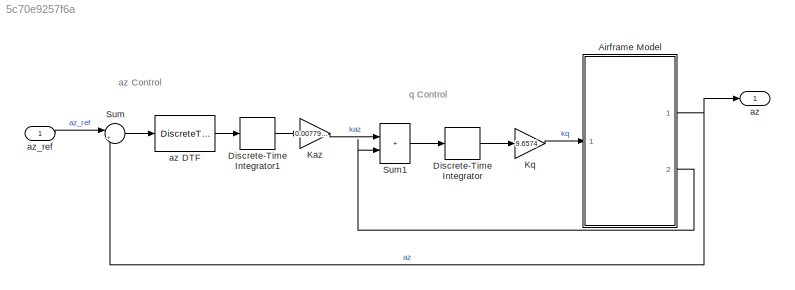
MODEL slx_5c70e9257f6a
KIND model
CONFIG AbsTol = 1e-6
CONFIG EnableMultiTasking = off
CONFIG FixedStep = auto
CONFIG MaxStep = auto
CONFIG MinStep = auto
CONFIG RelTol = 1e-3
CONFIG SampleTimeConstraint = Unconstrained
CONFIG Solver = ode23t
CONFIG SolverName = ode23t
CONFIG StartTime = 0.0
CONFIG StopTime = 5
WORKSPACE source: MATLAB code (in-file)
WORKSPACE code: scd_aero_guid_dat
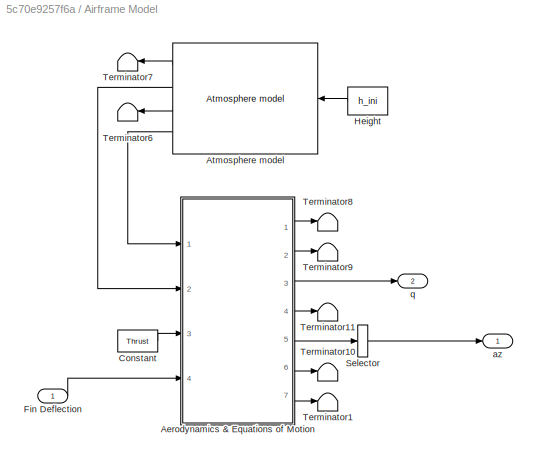
BLOCK [SubSystem] Airframe Model
  Ports = [1, 2]
  RTWMemSecDataConstants = Default
  RTWMemSecDataInternal = Default
  RTWMemSecDataParameters = Default
  RTWMemSecFuncExecute = Default
  RTWMemSecFuncInitTerm = Default
  RequestExecContextInheritance = off
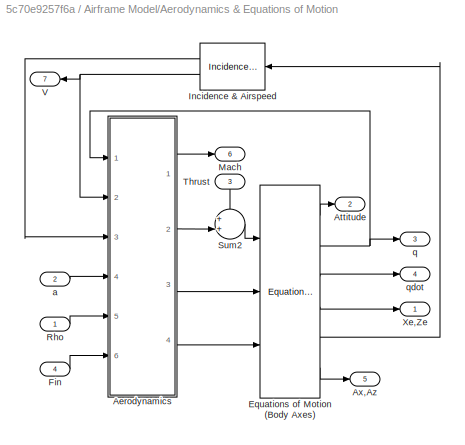
BLOCK [SubSystem] Airframe Model/Aerodynamics & Equations of Motion
  Ports = [4, 7]
  RTWMemSecDataConstants = Default
  RTWMemSecDataInternal = Default
  RTWMemSecDataParameters = Default
  RTWMemSecFuncExecute = Default
  RTWMemSecFuncInitTerm = Default
  RequestExecContextInheritance = off
BLOCK [Reference] Airframe Model/Aerodynamics & Equations of Motion/ Equations of Motion (Body Axes)  REF=aerospace/3DoF  (lib defined in mdl_cf564d925549, slx_1354fe9238a2, +3 more)
Equations
of
Motion / Equations of Motion
(Body Axes)
  Ports = [3, 6]
  SourceBlock = aerospace/3DoF\nEquations\nof\nMotion / Equations of Motion\n(Body Axes)
  SourceProductBaseCode = SL
  SourceType = 3 DOF equations of motion
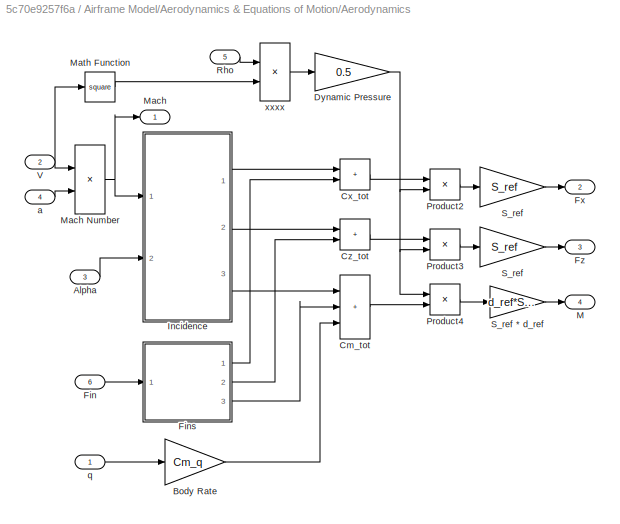
BLOCK [SubSystem] Airframe Model/Aerodynamics & Equations of Motion/Aerodynamics
  Ports = [6, 4]
  RTWMemSecDataConstants = Default
  RTWMemSecDataInternal = Default
  RTWMemSecDataParameters = Default
  RTWMemSecFuncExecute = Default
  RTWMemSecFuncInitTerm = Default
  RequestExecContextInheritance = off
BLOCK [Outport] Airframe Model/Aerodynamics & Equations of Motion/Aerodynamics/ M
  InitialOutput = 0
  Port = 4
BLOCK [Outport] Airframe Model/Aerodynamics & Equations of Motion/Aerodynamics/ Mach
  InitialOutput = 0
  NameLocation = top
BLOCK [Inport] Airframe Model/Aerodynamics & Equations of Motion/Aerodynamics/Alpha
  Port = 3
BLOCK [Gain] Airframe Model/Aerodynamics & Equations of Motion/Aerodynamics/Body Rate
  Gain = Cm_q
  OutDataTypeStr = Inherit: Same as input
  ParamDataTypeStr = Inherit: Same as input
  SaturateOnIntegerOverflow = on
BLOCK [Sum] Airframe Model/Aerodynamics & Equations of Motion/Aerodynamics/Cm_tot
  IconShape = rectangular
  InputSameDT = on
  Inputs = +++
  OutDataTypeStr = Inherit: Same as first input
  Ports = [3, 1]
  SaturateOnIntegerOverflow = on
BLOCK [Sum] Airframe Model/Aerodynamics & Equations of Motion/Aerodynamics/Cx_tot
  IconShape = rectangular
  InputSameDT = on
  OutDataTypeStr = Inherit: Same as first input
  Ports = [2, 1]
  SaturateOnIntegerOverflow = on
BLOCK [Sum] Airframe Model/Aerodynamics & Equations of Motion/Aerodynamics/Cz_tot
  IconShape = rectangular
  InputSameDT = on
  OutDataTypeStr = Inherit: Same as first input
  Ports = [2, 1]
  SaturateOnIntegerOverflow = on
BLOCK [Gain] Airframe Model/Aerodynamics & Equations of Motion/Aerodynamics/Dynamic Pressure
  Gain = 0.5
  OutDataTypeStr = Inherit: Same as input
  ParamDataTypeStr = Inherit: Same as input
  SaturateOnIntegerOverflow = on
BLOCK [Inport] Airframe Model/Aerodynamics & Equations of Motion/Aerodynamics/Fin
  Port = 6
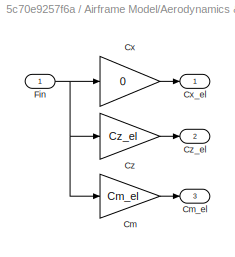
BLOCK [SubSystem] Airframe Model/Aerodynamics & Equations of Motion/Aerodynamics/Fins
  Ports = [1, 3]
  RTWMemSecDataConstants = Default
  RTWMemSecDataInternal = Default
  RTWMemSecDataParameters = Default
  RTWMemSecFuncExecute = Default
  RTWMemSecFuncInitTerm = Default
  RequestExecContextInheritance = off
BLOCK [Gain] Airframe Model/Aerodynamics & Equations of Motion/Aerodynamics/Fins/Cm
  Gain = Cm_el
  OutDataTypeStr = Inherit: Same as input
  ParamDataTypeStr = Inherit: Same as input
  SaturateOnIntegerOverflow = on
BLOCK [Outport] Airframe Model/Aerodynamics & Equations of Motion/Aerodynamics/Fins/Cm_el
  InitialOutput = 0
  Port = 3
BLOCK [Gain] Airframe Model/Aerodynamics & Equations of Motion/Aerodynamics/Fins/Cx
  Gain = 0
  OutDataTypeStr = Inherit: Same as input
  ParamDataTypeStr = Inherit: Same as input
  SaturateOnIntegerOverflow = on
BLOCK [Outport] Airframe Model/Aerodynamics & Equations of Motion/Aerodynamics/Fins/Cx_el
  InitialOutput = 0
BLOCK [Gain] Airframe Model/Aerodynamics & Equations of Motion/Aerodynamics/Fins/Cz
  Gain = Cz_el
  OutDataTypeStr = Inherit: Same as input
  ParamDataTypeStr = Inherit: Same as input
  SaturateOnIntegerOverflow = on
BLOCK [Outport] Airframe Model/Aerodynamics & Equations of Motion/Aerodynamics/Fins/Cz_el
  InitialOutput = 0
  Port = 2
BLOCK [Inport] Airframe Model/Aerodynamics & Equations of Motion/Aerodynamics/Fins/Fin
BLOCK [Outport] Airframe Model/Aerodynamics & Equations of Motion/Aerodynamics/Fx
  InitialOutput = [0]
  Port = 2
BLOCK [Outport] Airframe Model/Aerodynamics & Equations of Motion/Aerodynamics/Fz
  InitialOutput = 0
  Port = 3
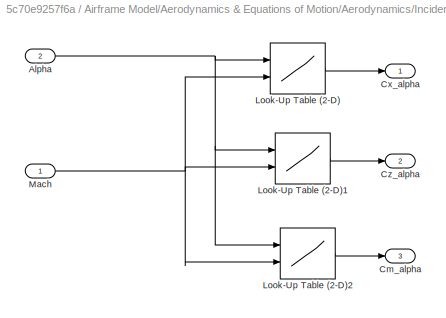
BLOCK [SubSystem] Airframe Model/Aerodynamics & Equations of Motion/Aerodynamics/Incidence
  Ports = [2, 3]
  RTWMemSecDataConstants = Default
  RTWMemSecDataInternal = Default
  RTWMemSecDataParameters = Default
  RTWMemSecFuncExecute = Default
  RTWMemSecFuncInitTerm = Default
  RequestExecContextInheritance = off
BLOCK [Inport] Airframe Model/Aerodynamics & Equations of Motion/Aerodynamics/Incidence/Alpha
  Port = 2
BLOCK [Outport] Airframe Model/Aerodynamics & Equations of Motion/Aerodynamics/Incidence/Cm_alpha
  InitialOutput = 0
  Port = 3
BLOCK [Outport] Airframe Model/Aerodynamics & Equations of Motion/Aerodynamics/Incidence/Cx_alpha
  InitialOutput = 0
BLOCK [Outport] Airframe Model/Aerodynamics & Equations of Motion/Aerodynamics/Incidence/Cz_alpha
  InitialOutput = 0
  Port = 2
BLOCK [Lookup2D] Airframe Model/Aerodynamics & Equations of Motion/Aerodynamics/Incidence/Look-Up Table (2-D)
  ColumnIndex = Mach_vec
  InputSameDT = off
  RowIndex = alpha_vec
  Table = Cx_alpha
BLOCK [Lookup2D] Airframe Model/Aerodynamics & Equations of Motion/Aerodynamics/Incidence/Look-Up Table (2-D)1
  ColumnIndex = Mach_vec
  InputSameDT = off
  RowIndex = alpha_vec
  Table = Cz_alpha
BLOCK [Lookup2D] Airframe Model/Aerodynamics & Equations of Motion/Aerodynamics/Incidence/Look-Up Table (2-D)2
  ColumnIndex = Mach_vec
  InputSameDT = off
  RowIndex = alpha_vec
  Table = Cm_alpha
BLOCK [Inport] Airframe Model/Aerodynamics & Equations of Motion/Aerodynamics/Incidence/Mach
BLOCK [Product] Airframe Model/Aerodynamics & Equations of Motion/Aerodynamics/Mach Number
  InputSameDT = on
  Inputs = */
  OutDataTypeStr = Inherit: Same as first input
  Ports = [2, 1]
  SaturateOnIntegerOverflow = on
BLOCK [Math] Airframe Model/Aerodynamics & Equations of Motion/Aerodynamics/Math Function
  Operator = square
  Ports = [1, 1]
  SignedPower = on
BLOCK [Product] Airframe Model/Aerodynamics & Equations of Motion/Aerodynamics/Product2
  InputSameDT = on
  OutDataTypeStr = Inherit: Same as first input
  Ports = [2, 1]
  SaturateOnIntegerOverflow = on
BLOCK [Product] Airframe Model/Aerodynamics & Equations of Motion/Aerodynamics/Product3
  InputSameDT = on
  OutDataTypeStr = Inherit: Same as first input
  Ports = [2, 1]
  SaturateOnIntegerOverflow = on
BLOCK [Product] Airframe Model/Aerodynamics & Equations of Motion/Aerodynamics/Product4
  InputSameDT = on
  OutDataTypeStr = Inherit: Same as first input
  Ports = [2, 1]
  SaturateOnIntegerOverflow = on
BLOCK [Inport] Airframe Model/Aerodynamics & Equations of Motion/Aerodynamics/Rho
  NameLocation = top
  Port = 5
BLOCK [Gain] Airframe Model/Aerodynamics & Equations of Motion/Aerodynamics/S_ref
  Gain = S_ref
  OutDataTypeStr = Inherit: Same as input
  ParamDataTypeStr = Inherit: Same as input
  SaturateOnIntegerOverflow = on
BLOCK [Gain] Airframe Model/Aerodynamics & Equations of Motion/Aerodynamics/S_ref 
  Gain = S_ref
  OutDataTypeStr = Inherit: Same as input
  ParamDataTypeStr = Inherit: Same as input
  SaturateOnIntegerOverflow = on
BLOCK [Gain] Airframe Model/Aerodynamics & Equations of Motion/Aerodynamics/S_ref * d_ref
  Gain = d_ref*S_ref
  OutDataTypeStr = Inherit: Same as input
  ParamDataTypeStr = Inherit: Same as input
  SaturateOnIntegerOverflow = on
BLOCK [Inport] Airframe Model/Aerodynamics & Equations of Motion/Aerodynamics/V
  Port = 2
BLOCK [Inport] Airframe Model/Aerodynamics & Equations of Motion/Aerodynamics/a
  Port = 4
BLOCK [Inport] Airframe Model/Aerodynamics & Equations of Motion/Aerodynamics/q
BLOCK [Product] Airframe Model/Aerodynamics & Equations of Motion/Aerodynamics/xxxx
  InputSameDT = on
  OutDataTypeStr = Inherit: Same as first input
  Ports = [2, 1]
  SaturateOnIntegerOverflow = on
BLOCK [Outport] Airframe Model/Aerodynamics & Equations of Motion/Attitude
  InitialOutput = 0
  Port = 2
BLOCK [Outport] Airframe Model/Aerodynamics & Equations of Motion/Ax,Az
  InitialOutput = 0
  Port = 5
BLOCK [Inport] Airframe Model/Aerodynamics & Equations of Motion/Fin
  Port = 4
BLOCK [Reference] Airframe Model/Aerodynamics & Equations of Motion/Incidence & Airspeed  REF=aerospace/3DoF  (lib defined in mdl_cf564d925549, slx_1354fe9238a2, +3 more)
Equations
of
Motion /Incidence 
& Airspeed
  NameLocation = top
  Ports = [1, 2]
  SourceBlock = aerospace/3DoF\nEquations\nof\nMotion /Incidence \n& Airspeed
  SourceProductBaseCode = SL
  SourceType = Incidence and Airspeed
BLOCK [Outport] Airframe Model/Aerodynamics & Equations of Motion/Mach
  InitialOutput = 0
  NameLocation = top
  Port = 6
BLOCK [Inport] Airframe Model/Aerodynamics & Equations of Motion/Rho
BLOCK [Sum] Airframe Model/Aerodynamics & Equations of Motion/Sum2
  InputSameDT = on
  Inputs = ++|
  OutDataTypeStr = Inherit: Same as first input
  Ports = [2, 1]
  SaturateOnIntegerOverflow = on
BLOCK [Inport] Airframe Model/Aerodynamics & Equations of Motion/Thrust
  NameLocation = left
  Port = 3
BLOCK [Outport] Airframe Model/Aerodynamics & Equations of Motion/V
  InitialOutput = 0
  Port = 7
BLOCK [Outport] Airframe Model/Aerodynamics & Equations of Motion/Xe,Ze
  InitialOutput = 0
BLOCK [Inport] Airframe Model/Aerodynamics & Equations of Motion/a
  Port = 2
BLOCK [Outport] Airframe Model/Aerodynamics & Equations of Motion/q
  InitialOutput = 0
  Port = 3
BLOCK [Outport] Airframe Model/Aerodynamics & Equations of Motion/qdot
  InitialOutput = 0
  Port = 4
BLOCK [Reference] Airframe Model/Atmosphere model  REF=aerospace/Atmosphere/Atmosphere  (lib defined in mdl_cf564d925549, slx_1354fe9238a2, +3 more)
model
  Ports = [1, 4]
  SourceBlock = aerospace/Atmosphere/Atmosphere\nmodel
  SourceProductBaseCode = SL
  SourceType = Atmosphere Model
BLOCK [Constant] Airframe Model/Constant
  Value = Thrust
BLOCK [Inport] Airframe Model/Fin Deflection
BLOCK [Constant] Airframe Model/Height
  Value = h_ini
BLOCK [Selector] Airframe Model/Selector
  IndexOptions = Index vector (dialog)
  Indices = [2]
  InputPortWidth = 2
  OutputSizes = 1
  Ports = [1, 1]
BLOCK [Terminator] Airframe Model/Terminator1
BLOCK [Terminator] Airframe Model/Terminator10
BLOCK [Terminator] Airframe Model/Terminator11
BLOCK [Terminator] Airframe Model/Terminator6
BLOCK [Terminator] Airframe Model/Terminator7
BLOCK [Terminator] Airframe Model/Terminator8
BLOCK [Terminator] Airframe Model/Terminator9
BLOCK [Outport] Airframe Model/az
  InitialOutput = 0
BLOCK [Outport] Airframe Model/q
  InitialOutput = 0
  Port = 2
BLOCK [DiscreteIntegrator] Discrete-Time Integrator
  ICPrevOutput = DiscIntNeverNeededParam
  ICPrevScaledInput = DiscIntNeverNeededParam
  Ports = [1, 1]
  SampleTime = 0.01
BLOCK [DiscreteIntegrator] Discrete-Time Integrator1
  ICPrevOutput = DiscIntNeverNeededParam
  ICPrevScaledInput = DiscIntNeverNeededParam
  Ports = [1, 1]
  SampleTime = 0.01
BLOCK [Gain] Kaz
  Gain = 0.0077918
BLOCK [Gain] Kq
  Gain = 9.6574
BLOCK [Sum] Sum
  Inputs = |+-
  Ports = [2, 1]
  SaturateOnIntegerOverflow = on
BLOCK [Sum] Sum1
  IconShape = rectangular
  Ports = [2, 1]
  SaturateOnIntegerOverflow = on
BLOCK [Outport] az
BLOCK [DiscreteTransferFcn] az DTF
  Denominator = [1 -0.88893]
  InputPortMap = u0
  Numerator = [100.109745 -99.109745]
  Ports = [1, 1]
  SampleTime = 0.01
BLOCK [Inport] az_ref
ANNOTATION (root): az Control
ANNOTATION (root): q Control
LINE Airframe Model/Aerodynamics & Equations of Motion/ Equations of Motion (Body Axes):1 -> Airframe Model/Aerodynamics & Equations of Motion/Attitude:1
NET Airframe Model/Aerodynamics & Equations of Motion/ Equations of Motion (Body Axes):2 -> Airframe Model/Aerodynamics & Equations of Motion/Aerodynamics:1, Airframe Model/Aerodynamics & Equations of Motion/q:1
LINE Airframe Model/Aerodynamics & Equations of Motion/ Equations of Motion (Body Axes):3 -> Airframe Model/Aerodynamics & Equations of Motion/qdot:1
LINE Airframe Model/Aerodynamics & Equations of Motion/ Equations of Motion (Body Axes):4 -> Airframe Model/Aerodynamics & Equations of Motion/Xe,Ze:1
LINE Airframe Model/Aerodynamics & Equations of Motion/ Equations of Motion (Body Axes):5 -> Airframe Model/Aerodynamics & Equations of Motion/Incidence & Airspeed:1
LINE Airframe Model/Aerodynamics & Equations of Motion/ Equations of Motion (Body Axes):6 -> Airframe Model/Aerodynamics & Equations of Motion/Ax,Az:1
LINE Airframe Model/Aerodynamics & Equations of Motion/Aerodynamics/Alpha:1 -> Airframe Model/Aerodynamics & Equations of Motion/Aerodynamics/Incidence:2
LINE Airframe Model/Aerodynamics & Equations of Motion/Aerodynamics/Body Rate:1 -> Airframe Model/Aerodynamics & Equations of Motion/Aerodynamics/Cm_tot:3
LINE Airframe Model/Aerodynamics & Equations of Motion/Aerodynamics/Cm_tot:1 -> Airframe Model/Aerodynamics & Equations of Motion/Aerodynamics/Product4:2
LINE Airframe Model/Aerodynamics & Equations of Motion/Aerodynamics/Cx_tot:1 -> Airframe Model/Aerodynamics & Equations of Motion/Aerodynamics/Product2:1
LINE Airframe Model/Aerodynamics & Equations of Motion/Aerodynamics/Cz_tot:1 -> Airframe Model/Aerodynamics & Equations of Motion/Aerodynamics/Product3:1
NET Airframe Model/Aerodynamics & Equations of Motion/Aerodynamics/Dynamic Pressure:1 -> Airframe Model/Aerodynamics & Equations of Motion/Aerodynamics/Product2:2, Airframe Model/Aerodynamics & Equations of Motion/Aerodynamics/Product3:2, Airframe Model/Aerodynamics & Equations of Motion/Aerodynamics/Product4:1
LINE Airframe Model/Aerodynamics & Equations of Motion/Aerodynamics/Fin:1 -> Airframe Model/Aerodynamics & Equations of Motion/Aerodynamics/Fins:1
LINE Airframe Model/Aerodynamics & Equations of Motion/Aerodynamics/Fins/Cm:1 -> Airframe Model/Aerodynamics & Equations of Motion/Aerodynamics/Fins/Cm_el:1
LINE Airframe Model/Aerodynamics & Equations of Motion/Aerodynamics/Fins/Cx:1 -> Airframe Model/Aerodynamics & Equations of Motion/Aerodynamics/Fins/Cx_el:1
LINE Airframe Model/Aerodynamics & Equations of Motion/Aerodynamics/Fins/Cz:1 -> Airframe Model/Aerodynamics & Equations of Motion/Aerodynamics/Fins/Cz_el:1
NET Airframe Model/Aerodynamics & Equations of Motion/Aerodynamics/Fins/Fin:1 -> Airframe Model/Aerodynamics & Equations of Motion/Aerodynamics/Fins/Cm:1, Airframe Model/Aerodynamics & Equations of Motion/Aerodynamics/Fins/Cx:1, Airframe Model/Aerodynamics & Equations of Motion/Aerodynamics/Fins/Cz:1
LINE Airframe Model/Aerodynamics & Equations of Motion/Aerodynamics/Fins:1 -> Airframe Model/Aerodynamics & Equations of Motion/Aerodynamics/Cx_tot:2
LINE Airframe Model/Aerodynamics & Equations of Motion/Aerodynamics/Fins:2 -> Airframe Model/Aerodynamics & Equations of Motion/Aerodynamics/Cz_tot:2
LINE Airframe Model/Aerodynamics & Equations of Motion/Aerodynamics/Fins:3 -> Airframe Model/Aerodynamics & Equations of Motion/Aerodynamics/Cm_tot:2
NET Airframe Model/Aerodynamics & Equations of Motion/Aerodynamics/Incidence/Alpha:1 -> Airframe Model/Aerodynamics & Equations of Motion/Aerodynamics/Incidence/Look-Up Table (2-D)1:1, Airframe Model/Aerodynamics & Equations of Motion/Aerodynamics/Incidence/Look-Up Table (2-D)2:1, Airframe Model/Aerodynamics & Equations of Motion/Aerodynamics/Incidence/Look-Up Table (2-D):1
LINE Airframe Model/Aerodynamics & Equations of Motion/Aerodynamics/Incidence/Look-Up Table (2-D)1:1 -> Airframe Model/Aerodynamics & Equations of Motion/Aerodynamics/Incidence/Cz_alpha:1
LINE Airframe Model/Aerodynamics & Equations of Motion/Aerodynamics/Incidence/Look-Up Table (2-D)2:1 -> Airframe Model/Aerodynamics & Equations of Motion/Aerodynamics/Incidence/Cm_alpha:1
LINE Airframe Model/Aerodynamics & Equations of Motion/Aerodynamics/Incidence/Look-Up Table (2-D):1 -> Airframe Model/Aerodynamics & Equations of Motion/Aerodynamics/Incidence/Cx_alpha:1
NET Airframe Model/Aerodynamics & Equations of Motion/Aerodynamics/Incidence/Mach:1 -> Airframe Model/Aerodynamics & Equations of Motion/Aerodynamics/Incidence/Look-Up Table (2-D)1:2, Airframe Model/Aerodynamics & Equations of Motion/Aerodynamics/Incidence/Look-Up Table (2-D)2:2, Airframe Model/Aerodynamics & Equations of Motion/Aerodynamics/Incidence/Look-Up Table (2-D):2
LINE Airframe Model/Aerodynamics & Equations of Motion/Aerodynamics/Incidence:1 -> Airframe Model/Aerodynamics & Equations of Motion/Aerodynamics/Cx_tot:1
LINE Airframe Model/Aerodynamics & Equations of Motion/Aerodynamics/Incidence:2 -> Airframe Model/Aerodynamics & Equations of Motion/Aerodynamics/Cz_tot:1
LINE Airframe Model/Aerodynamics & Equations of Motion/Aerodynamics/Incidence:3 -> Airframe Model/Aerodynamics & Equations of Motion/Aerodynamics/Cm_tot:1
NET Airframe Model/Aerodynamics & Equations of Motion/Aerodynamics/Mach Number:1 -> Airframe Model/Aerodynamics & Equations of Motion/Aerodynamics/ Mach:1, Airframe Model/Aerodynamics & Equations of Motion/Aerodynamics/Incidence:1
LINE Airframe Model/Aerodynamics & Equations of Motion/Aerodynamics/Math Function:1 -> Airframe Model/Aerodynamics & Equations of Motion/Aerodynamics/xxxx:2
LINE Airframe Model/Aerodynamics & Equations of Motion/Aerodynamics/Product2:1 -> Airframe Model/Aerodynamics & Equations of Motion/Aerodynamics/S_ref:1
LINE Airframe Model/Aerodynamics & Equations of Motion/Aerodynamics/Product3:1 -> Airframe Model/Aerodynamics & Equations of Motion/Aerodynamics/S_ref :1
LINE Airframe Model/Aerodynamics & Equations of Motion/Aerodynamics/Product4:1 -> Airframe Model/Aerodynamics & Equations of Motion/Aerodynamics/S_ref * d_ref:1
LINE Airframe Model/Aerodynamics & Equations of Motion/Aerodynamics/Rho:1 -> Airframe Model/Aerodynamics & Equations of Motion/Aerodynamics/xxxx:1
LINE Airframe Model/Aerodynamics & Equations of Motion/Aerodynamics/S_ref * d_ref:1 -> Airframe Model/Aerodynamics & Equations of Motion/Aerodynamics/ M:1
LINE Airframe Model/Aerodynamics & Equations of Motion/Aerodynamics/S_ref :1 -> Airframe Model/Aerodynamics & Equations of Motion/Aerodynamics/Fz:1
LINE Airframe Model/Aerodynamics & Equations of Motion/Aerodynamics/S_ref:1 -> Airframe Model/Aerodynamics & Equations of Motion/Aerodynamics/Fx:1
NET Airframe Model/Aerodynamics & Equations of Motion/Aerodynamics/V:1 -> Airframe Model/Aerodynamics & Equations of Motion/Aerodynamics/Mach Number:1, Airframe Model/Aerodynamics & Equations of Motion/Aerodynamics/Math Function:1
LINE Airframe Model/Aerodynamics & Equations of Motion/Aerodynamics/a:1 -> Airframe Model/Aerodynamics & Equations of Motion/Aerodynamics/Mach Number:2
LINE Airframe Model/Aerodynamics & Equations of Motion/Aerodynamics/q:1 -> Airframe Model/Aerodynamics & Equations of Motion/Aerodynamics/Body Rate:1
LINE Airframe Model/Aerodynamics & Equations of Motion/Aerodynamics/xxxx:1 -> Airframe Model/Aerodynamics & Equations of Motion/Aerodynamics/Dynamic Pressure:1
LINE Airframe Model/Aerodynamics & Equations of Motion/Aerodynamics:1 -> Airframe Model/Aerodynamics & Equations of Motion/Mach:1
LINE Airframe Model/Aerodynamics & Equations of Motion/Aerodynamics:2 -> Airframe Model/Aerodynamics & Equations of Motion/Sum2:2
LINE Airframe Model/Aerodynamics & Equations of Motion/Aerodynamics:3 -> Airframe Model/Aerodynamics & Equations of Motion/ Equations of Motion (Body Axes):2
LINE Airframe Model/Aerodynamics & Equations of Motion/Aerodynamics:4 -> Airframe Model/Aerodynamics & Equations of Motion/ Equations of Motion (Body Axes):3
LINE Airframe Model/Aerodynamics & Equations of Motion/Fin:1 -> Airframe Model/Aerodynamics & Equations of Motion/Aerodynamics:6
LINE Airframe Model/Aerodynamics & Equations of Motion/Incidence & Airspeed:1 -> Airframe Model/Aerodynamics & Equations of Motion/Aerodynamics:3
NET Airframe Model/Aerodynamics & Equations of Motion/Incidence & Airspeed:2 -> Airframe Model/Aerodynamics & Equations of Motion/Aerodynamics:2, Airframe Model/Aerodynamics & Equations of Motion/V:1
LINE Airframe Model/Aerodynamics & Equations of Motion/Rho:1 -> Airframe Model/Aerodynamics & Equations of Motion/Aerodynamics:5
LINE Airframe Model/Aerodynamics & Equations of Motion/Sum2:1 -> Airframe Model/Aerodynamics & Equations of Motion/ Equations of Motion (Body Axes):1
LINE Airframe Model/Aerodynamics & Equations of Motion/Thrust:1 -> Airframe Model/Aerodynamics & Equations of Motion/Sum2:1
LINE Airframe Model/Aerodynamics & Equations of Motion/a:1 -> Airframe Model/Aerodynamics & Equations of Motion/Aerodynamics:4
LINE Airframe Model/Aerodynamics & Equations of Motion:1 -> Airframe Model/Terminator8:1
LINE Airframe Model/Aerodynamics & Equations of Motion:2 -> Airframe Model/Terminator9:1
LINE Airframe Model/Aerodynamics & Equations of Motion:3 -> Airframe Model/q:1
LINE Airframe Model/Aerodynamics & Equations of Motion:4 -> Airframe Model/Terminator11:1
LINE Airframe Model/Aerodynamics & Equations of Motion:5 -> Airframe Model/Selector:1
LINE Airframe Model/Aerodynamics & Equations of Motion:6 -> Airframe Model/Terminator10:1
LINE Airframe Model/Aerodynamics & Equations of Motion:7 -> Airframe Model/Terminator1:1
LINE Airframe Model/Atmosphere model:1 -> Airframe Model/Terminator7:1
LINE Airframe Model/Atmosphere model:2 -> Airframe Model/Aerodynamics & Equations of Motion:2
LINE Airframe Model/Atmosphere model:3 -> Airframe Model/Terminator6:1
LINE Airframe Model/Atmosphere model:4 -> Airframe Model/Aerodynamics & Equations of Motion:1
LINE Airframe Model/Constant:1 -> Airframe Model/Aerodynamics & Equations of Motion:3
LINE Airframe Model/Fin Deflection:1 -> Airframe Model/Aerodynamics & Equations of Motion:4
LINE Airframe Model/Height:1 -> Airframe Model/Atmosphere model:1
LINE Airframe Model/Selector:1 -> Airframe Model/az:1
NET Airframe Model:1 -> Sum:2, az:1
LINE Airframe Model:2 -> Sum1:2
LINE Discrete-Time Integrator1:1 -> Kaz:1
LINE Discrete-Time Integrator:1 -> Kq:1
LINE Kaz:1 -> Sum1:1
LINE Kq:1 -> Airframe Model:1
LINE Sum1:1 -> Discrete-Time Integrator:1
LINE Sum:1 -> az DTF:1
LINE az DTF:1 -> Discrete-Time Integrator1:1
LINE az_ref:1 -> Sum:1
note: NET lines group one-source signal fan-out (src -> all destinations, sorted); 1:1 wires keep LINE
